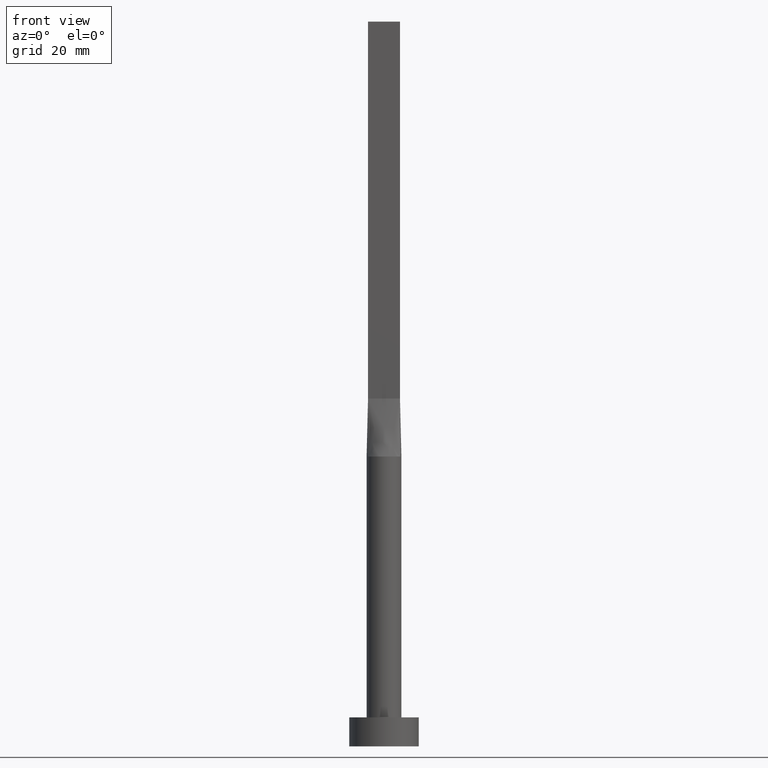
[diagram: clean part render]
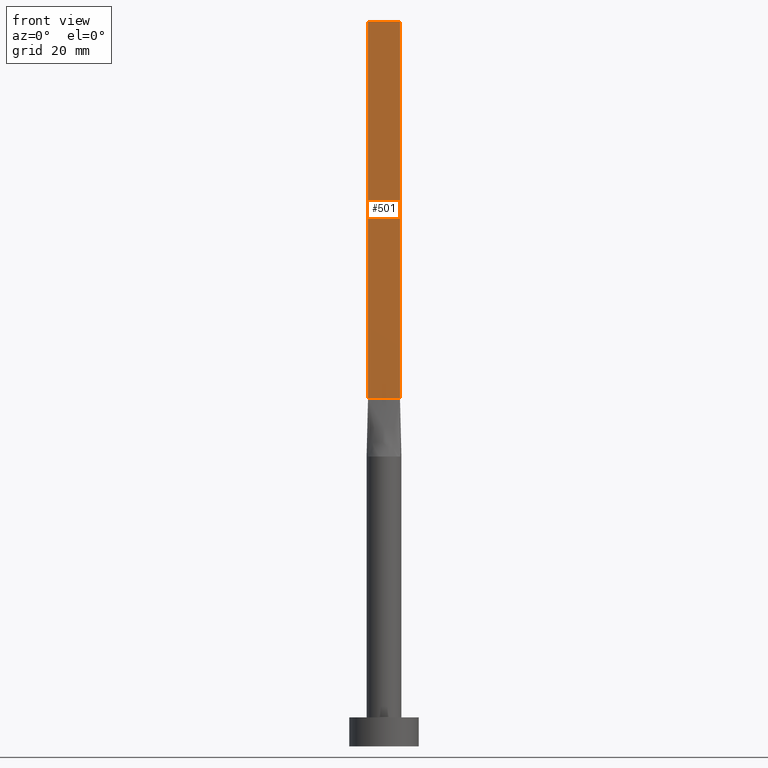
[diagram: same view with one face highlighted and labeled with its STEP entity id]
A machine part, front view. The second image highlights one B-rep face of the part: STEP entity #501.
In plain terms, the highlighted planar face has unit normal (0, 1, -0).
Its self-contained STEP definition (entity closure, byte-faithful):
#12 = CARTESIAN_POINT ( 'NONE',  ( -2.750000000000000000, -0.9999999999999993339, 125.0000000000000000 ) ) ;
#27 = VERTEX_POINT ( 'NONE', #219 ) ;
#30 = LINE ( 'NONE', #70, #339 ) ;
#69 = DIRECTION ( 'NONE',  ( -1.000000000000000000, 7.885106708985487801E-17, 0.000000000000000000 ) ) ;
#70 = CARTESIAN_POINT ( 'NONE',  ( -2.750000000000000000, -0.9999999999999993339, 60.00000000000000000 ) ) ;
#72 = CARTESIAN_POINT ( 'NONE',  ( -2.750000000000000000, -0.9999999999999993339, 60.00000000000000000 ) ) ;
#143 = VERTEX_POINT ( 'NONE', #274 ) ;
#182 = DIRECTION ( 'NONE',  ( 1.000000000000000000, -7.885106708985487801E-17, 0.000000000000000000 ) ) ;
#189 = EDGE_LOOP ( 'NONE', ( #344, #527, #572, #444 ) ) ;
#212 = EDGE_CURVE ( 'NONE', #350, #27, #291, .T. ) ;
#219 = CARTESIAN_POINT ( 'NONE',  ( 2.750000000000000000, -0.9999999999999997780, 60.00000000000000000 ) ) ;
#223 = LINE ( 'NONE', #12, #499 ) ;
#236 = VECTOR ( 'NONE', #386, 1000.000000000000000 ) ;
#261 = DIRECTION ( 'NONE',  ( -0.000000000000000000, -0.000000000000000000, -1.000000000000000000 ) ) ;
#271 = CARTESIAN_POINT ( 'NONE',  ( -2.750000000000000000, -0.9999999999999993339, 125.0000000000000000 ) ) ;
#274 = CARTESIAN_POINT ( 'NONE',  ( -2.750000000000000000, -0.9999999999999993339, 125.0000000000000000 ) ) ;
#291 = LINE ( 'NONE', #394, #236 ) ;
#295 = VERTEX_POINT ( 'NONE', #72 ) ;
#319 = DIRECTION ( 'NONE',  ( 1.000000000000000000, -7.885106708985487801E-17, 0.000000000000000000 ) ) ;
#323 = PLANE ( 'NONE',  #443 ) ;
#338 = DIRECTION ( 'NONE',  ( 7.885106708985487801E-17, 1.000000000000000000, -0.000000000000000000 ) ) ;
#339 = VECTOR ( 'NONE', #319, 1000.000000000000000 ) ;
#344 = ORIENTED_EDGE ( 'NONE', *, *, #411, .T. ) ;
#350 = VERTEX_POINT ( 'NONE', #390 ) ;
#368 = FACE_OUTER_BOUND ( 'NONE', #189, .T. ) ;
#371 = CARTESIAN_POINT ( 'NONE',  ( -2.750000000000000000, -0.9999999999999993339, 125.0000000000000000 ) ) ;
#386 = DIRECTION ( 'NONE',  ( -0.000000000000000000, -0.000000000000000000, -1.000000000000000000 ) ) ;
#390 = CARTESIAN_POINT ( 'NONE',  ( 2.750000000000000000, -0.9999999999999997780, 125.0000000000000000 ) ) ;
#394 = CARTESIAN_POINT ( 'NONE',  ( 2.750000000000000000, -0.9999999999999997780, 125.0000000000000000 ) ) ;
#411 = EDGE_CURVE ( 'NONE', #295, #27, #30, .T. ) ;
#423 = EDGE_CURVE ( 'NONE', #143, #295, #504, .T. ) ;
#443 = AXIS2_PLACEMENT_3D ( 'NONE', #371, #338, #69 ) ;
#444 = ORIENTED_EDGE ( 'NONE', *, *, #423, .T. ) ;
#492 = EDGE_CURVE ( 'NONE', #143, #350, #223, .T. ) ;
#499 = VECTOR ( 'NONE', #182, 1000.000000000000000 ) ;
#501 = ADVANCED_FACE ( 'NONE', ( #368 ), #323, .F. ) ;
#504 = LINE ( 'NONE', #271, #574 ) ;
#527 = ORIENTED_EDGE ( 'NONE', *, *, #212, .F. ) ;
#572 = ORIENTED_EDGE ( 'NONE', *, *, #492, .F. ) ;
#574 = VECTOR ( 'NONE', #261, 1000.000000000000000 ) ;